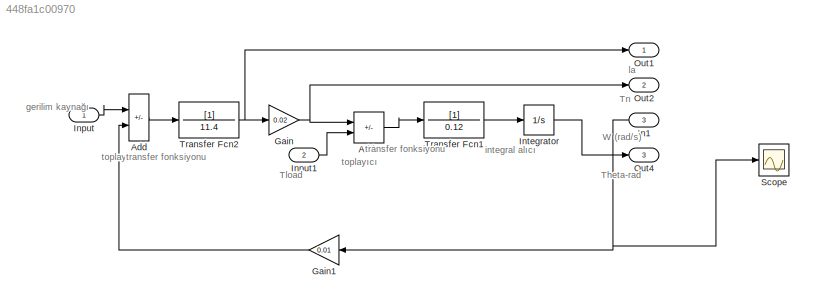
MODEL slx_448fa1c00970
KIND model
CONFIG AbsTol = auto
CONFIG EnableMultiTasking = off
CONFIG FixedStep = auto
CONFIG MaxStep = auto
CONFIG MinStep = auto
CONFIG RelTol = 1e-3
CONFIG SampleTimeConstraint = Unconstrained
CONFIG SolverName = VariableStepAuto
CONFIG StartTime = 0.0
CONFIG StopTime = 10.0
BLOCK [Sum] Add
  IconShape = rectangular
  Inputs = +-
BLOCK [Sum] Add1
  IconShape = rectangular
  Inputs = +-
BLOCK [Gain] Gain
  Gain = 0.02
BLOCK [Gain] Gain1
  Gain = 0.01
  NameLocation = top
BLOCK [Inport] In1
  NameLocation = top
  Port = 3
BLOCK [Inport] Input
BLOCK [Inport] Input1
  Port = 2
BLOCK [Integrator] Integrator
BLOCK [Outport] Out1
BLOCK [Outport] Out2
  Port = 2
BLOCK [Outport] Out4
  Port = 3
BLOCK [Scope] Scope
  Floating = off
  NumInputPorts = 1
  ScopeSpecificationString = Simulink.scopes.TimeScopeBlockCfg('CurrentConfiguration', extmgr.ConfigurationSet(extmgr.Configuration('Core','General UI',true),extmgr.Configuration('Core','Source UI',true),extmgr.Configuration('Sources','WiredSimulink',true),extmgr.Configuration('Visuals','Time Domain',true),extmgr.Configuration('Tools','Plot Navigation',true),extmgr.Configuration('Tools','Measurements',true,'Version','2022b'))...<+19ch>
BLOCK [TransferFcn] Transfer Fcn1
  Denominator = 0.12
BLOCK [TransferFcn] Transfer Fcn2
  Denominator = 11.4
ANNOTATION (root): Theta-rad
ANNOTATION (root): Tload
ANNOTATION (root): Tn
ANNOTATION (root): W (rad/s)
ANNOTATION (root): gerilim kaynağı
ANNOTATION (root): integral alıcı
ANNOTATION (root): la
ANNOTATION (root): toplayıcı
ANNOTATION (root): transfer fonksiyonu
LINE Add1:1 -> Transfer Fcn1:1
LINE Add:1 -> Transfer Fcn2:1
LINE Gain1:1 -> Add:2
NET Gain:1 -> Add1:1, Out2:1
NET In1:1 -> Gain1:1, Scope:1
LINE Input1:1 -> Add1:2
LINE Input:1 -> Add:1
LINE Integrator:1 -> Out4:1
LINE Transfer Fcn1:1 -> Integrator:1
NET Transfer Fcn2:1 -> Gain:1, Out1:1
note: NET lines group one-source signal fan-out (src -> all destinations, sorted); 1:1 wires keep LINE
